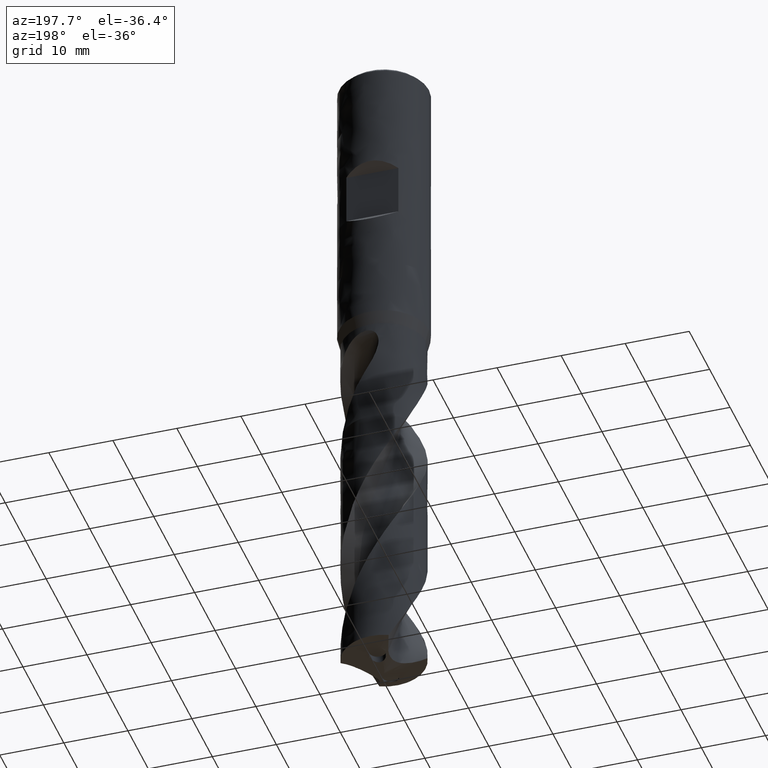
[diagram: clean part render]
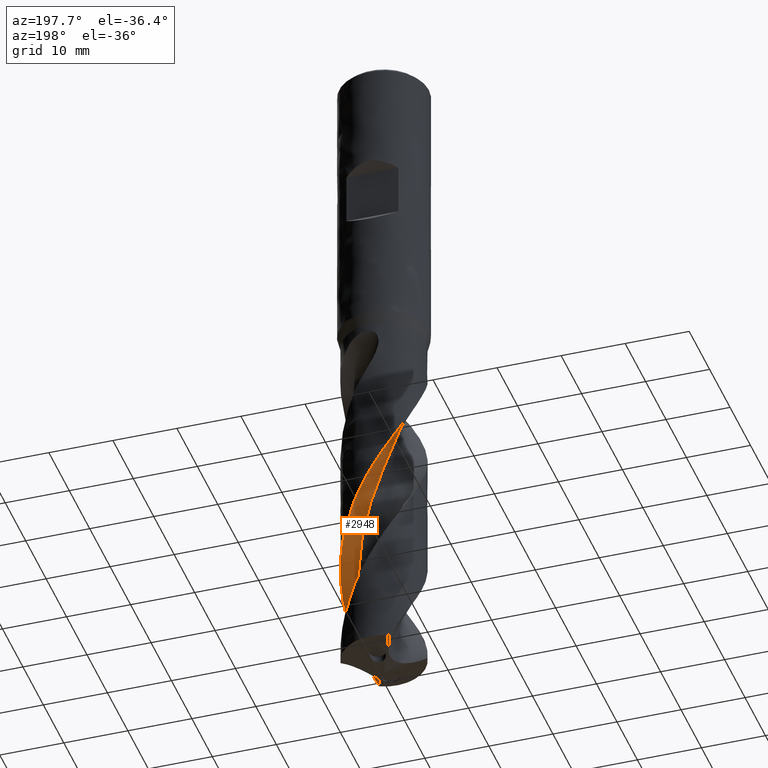
[diagram: same view with one face highlighted and labeled with its STEP entity id]
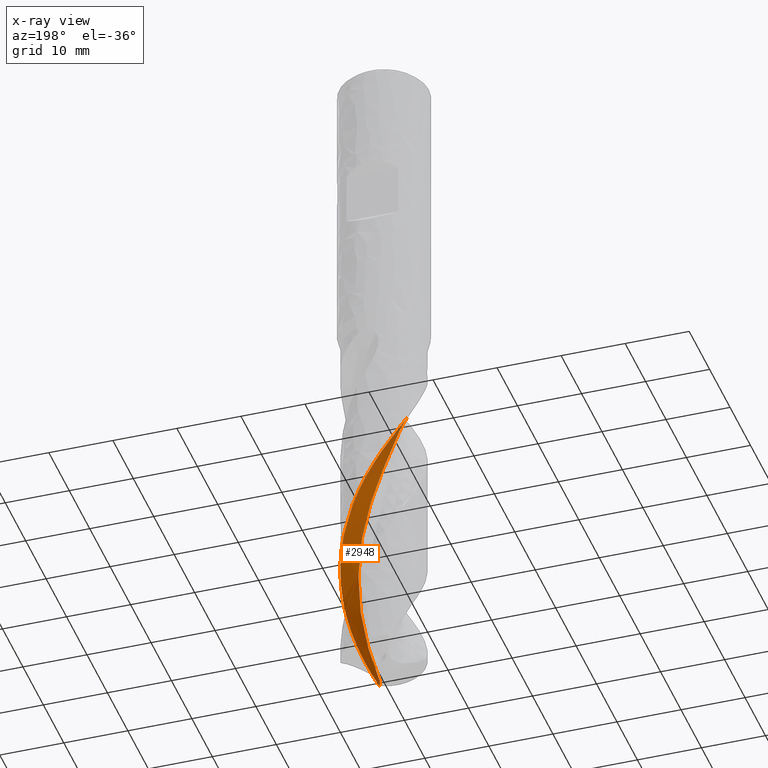
[diagram: x-ray of the same camera — body ghosted, the highlighted face saturated]
A machine part, auxiliary view. The second image highlights one B-rep face of the part: STEP entity #2948.
The next image is the same camera in x-ray: the body ghosted, the highlighted face saturated — about 0% of this face is hidden behind the body in this view.
In plain terms, the highlighted face is a freeform B-spline surface patch.
Its self-contained STEP definition (entity closure, byte-faithful):
#1653 = VERTEX_POINT('', #1654);
#1654 = CARTESIAN_POINT('', (-4.87816629638356, 4.29575297064759, -64.));
#1661 = EDGE_CURVE('', #1653, #1662, #1664, .T.);
#1662 = VERTEX_POINT('', #1663);
#1663 = CARTESIAN_POINT('', (-3.274731390133, 2.16180100099735, -64.));
#1664 = LINE('', #1665, #1666);
#1665 = CARTESIAN_POINT('', (-4.87816629638356, 4.29575297064758, -64.));
#1666 = VECTOR('', #1667, 2.66922357762644);
#1667 = DIRECTION('', (1.60343490625057, -2.13395196965023, 0.));
#2525 = EDGE_CURVE('', #2526, #1662, #2528, .T.);
#2526 = VERTEX_POINT('', #2527);
#2527 = CARTESIAN_POINT('', (1.76933288508049, -3.46675090777578, -105.583370022159));
#2528 = B_SPLINE_CURVE_WITH_KNOTS('', 3, (#2529, #2530, #2531, #2532, #2533, #2534, #2535, #2536, #2537, #2538, #2539, #2540, #2541, #2542, #2543, #2544, #2545, #2546, #2547, #2548, #2549, #2550, #2551, #2552, #2553, #2554, #2555, #2556, #2557, #2558, #2559, #2560, #2561, #2562, #2563, #2564, #2565, #2566), .UNSPECIFIED., .F., .U., (4, 1, 1, 1, 1, 1, 1, 1, 1, 1, 1, 1, 1, 1, 1, 1, 1, 1, 1, 1, 1, 1, 1, 1, 1, 1, 1, 1, 1, 1, 1, 1, 1, 1, 1, 4), (1.4666299778413, 2.41020408163265, 3.61530612244898, 4.82040816326531, 6.02551020408163, 7.23061224489796, 8.43571428571429, 9.64081632653061, 10.8459183673469, 12.0510204081633, 13.2561224489796, 14.4612244897959, 15.6663265306122, 16.8714285714286, 18.0765306122449, 19.2816326530612, 20.4867346938776, 21.6918367346939, 22.8969387755102, 24.1020408163265, 25.3071428571429, 26.5122448979592, 27.7173469387755, 28.9224489795918, 30.1275510204082, 31.3326530612245, 32.5377551020408, 33.7428571428571, 34.9479591836735, 36.1530612244898, 37.3581632653061, 38.5632653061224, 39.7683673469388, 40.9734693877551, 42.1785714285714, 43.05), .UNSPECIFIED.);
#2529 = CARTESIAN_POINT('', (1.76933288508049, -3.46675090777578, -105.583370022159));
#2530 = CARTESIAN_POINT('', (1.86403161741141, -3.41547287836796, -105.268845320895));
#2531 = CARTESIAN_POINT('', (2.07468531352025, -3.29001168240015, -104.552619939359));
#2532 = CARTESIAN_POINT('', (2.38330179197817, -3.06480483217446, -103.434693877551));
#2533 = CARTESIAN_POINT('', (2.68814217933525, -2.78931151072497, -102.229591836735));
#2534 = CARTESIAN_POINT('', (2.96199499352436, -2.48419282969365, -101.024489795918));
#2535 = CARTESIAN_POINT('', (3.20205648307337, -2.15284875457277, -99.819387755102));
#2536 = CARTESIAN_POINT('', (3.40588527757476, -1.79893476523791, -98.6142857142857));
#2537 = CARTESIAN_POINT('', (3.57142669086556, -1.42632644184809, -97.4091836734694));
#2538 = CARTESIAN_POINT('', (3.69703120537813, -1.03907896841299, -96.2040816326531));
#2539 = CARTESIAN_POINT('', (3.78146949403353, -0.641385956096459, -94.9989795918367));
#2540 = CARTESIAN_POINT('', (3.82394319587153, -0.23753689451328, -93.7938775510204));
#2541 = CARTESIAN_POINT('', (3.82409154838274, 0.168126086225984, -92.5887755102041));
#2542 = CARTESIAN_POINT('', (3.78199378763708, 0.571251822612428, -91.3836734693878));
#2543 = CARTESIAN_POINT('', (3.69816732451443, 0.967523674991317, -90.1785714285715));
#2544 = CARTESIAN_POINT('', (3.57356172485133, 1.35270264467177, -88.9734693877551));
#2545 = CARTESIAN_POINT('', (3.40954856110614, 1.72266965894616, -87.7683673469388));
#2546 = CARTESIAN_POINT('', (3.20790723667037, 2.07346664231647, -86.5632653061224));
#2547 = CARTESIAN_POINT('', (2.97080691804732, 2.40133600295455, -85.3581632653061));
#2548 = CARTESIAN_POINT('', (2.700784742685, 2.70275817758209, -84.1530612244898));
#2549 = CARTESIAN_POINT('', (2.40072050156955, 2.97448689464156, -82.9479591836735));
#2550 = CARTESIAN_POINT('', (2.07380802549667, 3.21358183490346, -81.7428571428572));
#2551 = CARTESIAN_POINT('', (1.72352353182169, 3.41743839049559, -80.5377551020408));
#2552 = CARTESIAN_POINT('', (1.35359121524303, 3.58381424703327, -79.3326530612245));
#2553 = CARTESIAN_POINT('', (0.967946387922444, 3.71085254113963, -78.1275510204082));
#2554 = CARTESIAN_POINT('', (0.570696504644847, 3.79710136875352, -76.9224489795918));
#2555 = CARTESIAN_POINT('', (0.166080396016395, 3.84152946889434, -75.7173469387755));
#2556 = CARTESIAN_POINT('', (-0.241573830700888, 3.84353786773258, -74.5122448979592));
#2557 = CARTESIAN_POINT('', (-0.647892196388959, 3.80296756817977, -73.3071428571429));
#2558 = CARTESIAN_POINT('', (-1.04849785427849, 3.72010240775062, -72.1020408163266));
#2559 = CARTESIAN_POINT('', (-1.4390582048143, 3.59566996371033, -70.8969387755102));
#2560 = CARTESIAN_POINT('', (-1.8153173920344, 3.43082953503109, -69.6918367346939));
#2561 = CARTESIAN_POINT('', (-2.17318216479515, 3.22718809041112, -68.4867346938776));
#2562 = CARTESIAN_POINT('', (-2.50860546387415, 2.98669170372674, -67.2816326530612));
#2563 = CARTESIAN_POINT('', (-2.81821987923533, 2.71196183364429, -66.0765306122449));
#2564 = CARTESIAN_POINT('', (-3.07142043178922, 2.43328741944995, -64.9826530612245));
#2565 = CARTESIAN_POINT('', (-3.21742118566723, 2.24403980479224, -64.2904761904762));
#2566 = CARTESIAN_POINT('', (-3.274731390133, 2.16180100099735, -64.));
#2948 = ADVANCED_FACE('', (#2949), #3152, .T.);
#2949 = FACE_OUTER_BOUND('', #2950, .T.);
#2950 = EDGE_LOOP('', (#2951, #2952, #3120, #3151));
#2951 = ORIENTED_EDGE('', *, *, #1661, .F.);
#2952 = ORIENTED_EDGE('', *, *, #2953, .F.);
#2953 = EDGE_CURVE('', #2954, #1653, #2956, .T.);
#2954 = VERTEX_POINT('', #2955);
#2955 = CARTESIAN_POINT('', (2.61940619360715, -5.94884116386481, -104.63419347727));
#2956 = B_SPLINE_CURVE_WITH_KNOTS('', 3, (#2957, #2958, #2959, #2960, #2961, #2962, #2963, #2964, #2965, #2966, #2967, #2968, #2969, #2970, #2971, #2972, #2973, #2974, #2975, #2976, #2977, #2978, #2979, #2980, #2981, #2982, #2983, #2984, #2985, #2986, #2987, #2988, #2989, #2990, #2991, #2992, #2993, #2994, #2995, #2996, #2997, #2998, #2999, #3000, #3001, #3002, #3003, #3004, #3005, #3006, #3007, #3008, #3009, #3010, #3011, #3012, #3013, #3014, #3015, #3016, #3017, #3018, #3019, #3020, #3021, #3022, #3023, #3024, #3025, #3026, #3027, #3028, #3029, #3030, #3031, #3032, #3033, #3034, #3035, #3036, #3037, #3038, #3039, #3040, #3041, #3042, #3043, #3044, #3045, #3046, #3047, #3048, #3049, #3050, #3051, #3052, #3053, #3054, #3055, #3056, #3057, #3058, #3059, #3060, #3061, #3062, #3063, #3064, #3065, #3066, #3067, #3068, #3069, #3070, #3071, #3072, #3073, #3074, #3075, #3076, #3077, #3078, #3079, #3080, #3081, #3082, #3083, #3084, #3085, #3086, #3087, #3088, #3089, #3090, #3091, #3092, #3093, #3094, #3095, #3096, #3097, #3098, #3099, #3100, #3101, #3102, #3103, #3104, #3105, #3106, #3107, #3108, #3109, #3110, #3111, #3112, #3113, #3114, #3115, #3116, #3117, #3118, #3119), .UNSPECIFIED., .F., .U., (4, 3, 3, 3, 3, 3, 3, 3, 3, 3, 3, 3, 3, 3, 3, 3, 3, 3, 3, 3, 3, 3, 3, 3, 3, 3, 3, 3, 3, 3, 3, 3, 3, 3, 3, 3, 3, 3, 3, 3, 3, 3, 3, 3, 3, 3, 3, 3, 3, 3, 3, 3, 3, 3, 4), (0., 0.998336370863944, 1.99649047412274, 2.99446505108534, 3.99226193379352, 4.9898817935871, 5.98732581131093, 6.98459455805101, 7.98168743480268, 8.97860342666089, 9.97534175727484, 10.9719006848027, 11.9682773599798, 12.9644690597732, 13.9604725858547, 14.9562835495989, 15.1532615507649, 15.2116460245776, 16.2110579170065, 17.2102600911362, 18.2092591755443, 19.2080605965188, 20.2066686766019, 21.20508757629, 22.2033208000953, 23.2013708329778, 24.1992395981786, 25.1969288894021, 26.1944397856855, 27.1917724837976, 28.1889269829923, 29.1859029339771, 30.1826991989231, 31.1793139316794, 32.1757451115352, 33.1719901355086, 34.1680454784339, 35.163907043328, 35.6069051423239, 35.694469019146, 35.7820428486242, 36.7814709676935, 37.7806867175351, 38.779696328427, 39.7785057029571, 40.7771202152903, 41.7755394793692, 42.7737762290059, 43.4390578971871, 44.4369638819278, 45.4347217356698, 45.878109440331, 46.3214662742558, 46.7647940182437, 46.8087609576268), .UNSPECIFIED.);
#2957 = CARTESIAN_POINT('', (2.61940619360715, -5.94884116386481, -104.63419347727));
#2958 = CARTESIAN_POINT('', (2.77000933407887, -5.88252727380424, -104.344948105084));
#2959 = CARTESIAN_POINT('', (2.9181311318725, -5.81047320705002, -104.055659297088));
#2960 = CARTESIAN_POINT('', (3.06329270126568, -5.7329083218182, -103.766430096253));
#2961 = CARTESIAN_POINT('', (3.20842776831718, -5.65535759771111, -103.477253700379));
#2962 = CARTESIAN_POINT('', (3.35065325148035, -5.57227156315183, -103.188033962482));
#2963 = CARTESIAN_POINT('', (3.48950857905087, -5.48391556068566, -102.898873617238));
#2964 = CARTESIAN_POINT('', (3.62833893233877, -5.39557544977953, -102.609765279881));
#2965 = CARTESIAN_POINT('', (3.7638492320856, -5.30193606612728, -102.320614386521));
#2966 = CARTESIAN_POINT('', (3.89559800422425, -5.20329858738512, -102.031522045313));
#2967 = CARTESIAN_POINT('', (4.02732331784964, -5.10467867152848, -101.742481178409));
#2968 = CARTESIAN_POINT('', (4.15533602928886, -5.00102684032901, -101.453397708881));
#2969 = CARTESIAN_POINT('', (4.27921950007723, -4.89267620736941, -101.164373324449));
#2970 = CARTESIAN_POINT('', (4.40308099223102, -4.78434479730495, -100.875400216925));
#2971 = CARTESIAN_POINT('', (4.52285763517651, -4.67127878809751, -100.586383622219));
#2972 = CARTESIAN_POINT('', (4.6381611428566, -4.5538402709027, -100.297426676787));
#2973 = CARTESIAN_POINT('', (4.75344432695627, -4.43642245360848, -100.008520663369));
#2974 = CARTESIAN_POINT('', (4.86429566266074, -4.31459315085371, -99.7195715668055));
#2975 = CARTESIAN_POINT('', (4.97035422752059, -4.18874430503559, -99.4306814669928));
#2976 = CARTESIAN_POINT('', (5.07639415575657, -4.06291757339192, -99.1418421309834));
#2977 = CARTESIAN_POINT('', (5.17768100738962, -3.93302753030298, -98.8529603533684));
#2978 = CARTESIAN_POINT('', (5.27388346603363, -3.79949380664018, -98.5641371784009));
#2979 = CARTESIAN_POINT('', (5.37006895921537, -3.6659836318698, -98.2753649378767));
#2980 = CARTESIAN_POINT('', (5.46120624816701, -3.52878341700517, -97.9865496802998));
#2981 = CARTESIAN_POINT('', (5.54699811081937, -3.38833468809772, -97.6977938429317));
#2982 = CARTESIAN_POINT('', (5.6327747539422, -3.24791087488171, -97.4090892310279));
#2983 = CARTESIAN_POINT('', (5.71323737564219, -3.10419142447573, -97.1203411544657));
#2984 = CARTESIAN_POINT('', (5.78812358453371, -2.95763847861172, -96.831652528894));
#2985 = CARTESIAN_POINT('', (5.86299644789044, -2.81111165007246, -96.543015350767));
#2986 = CARTESIAN_POINT('', (5.93232112351955, -2.66170083634851, -96.2543354120806));
#2987 = CARTESIAN_POINT('', (5.99586996543631, -2.50988911260612, -95.9657141672431));
#2988 = CARTESIAN_POINT('', (6.05940736918721, -2.35810471347933, -95.6771448713881));
#2989 = CARTESIAN_POINT('', (6.11719395059291, -2.20386549327893, -95.3885329406229));
#2990 = CARTESIAN_POINT('', (6.16903939367948, -2.04767012949616, -95.0999799951036));
#2991 = CARTESIAN_POINT('', (6.22087535518535, -1.89150333098077, -94.8114798206259));
#2992 = CARTESIAN_POINT('', (6.26679052297084, -1.73332654250227, -94.522936215087));
#2993 = CARTESIAN_POINT('', (6.3066336893928, -1.5736491056827, -94.234452203749));
#2994 = CARTESIAN_POINT('', (6.34646945900873, -1.41400131266742, -93.9460217489043));
#2995 = CARTESIAN_POINT('', (6.38024920832287, -1.25279827353652, -93.6575480709661));
#2996 = CARTESIAN_POINT('', (6.40786061987277, -1.09056053306734, -93.3691335096882));
#2997 = CARTESIAN_POINT('', (6.43546681581829, -0.928353438183567, -93.0807734279231));
#2998 = CARTESIAN_POINT('', (6.45691682009467, -0.765054035860772, -92.7923707610906));
#2999 = CARTESIAN_POINT('', (6.472137851813, -0.601191838875201, -92.5040267286689));
#3000 = CARTESIAN_POINT('', (6.48735594077324, -0.437361322186757, -92.2157384432393));
#3001 = CARTESIAN_POINT('', (6.49635296757946, -0.272909456583064, -91.9274071935528));
#3002 = CARTESIAN_POINT('', (6.49909658321736, -0.108367901215504, -91.6391352506302));
#3003 = CARTESIAN_POINT('', (6.49963928855401, -0.0758204922542955, -91.5821131518821));
#3004 = CARTESIAN_POINT('', (6.49993750415248, -0.0432682353896615, -91.5250909689645));
#3005 = CARTESIAN_POINT('', (6.49999116790726, -0.0107152754332977, -91.4680694815839));
#3006 = CARTESIAN_POINT('', (6.5000070738971, -0.00106654599727479, -91.4511682564876));
#3007 = CARTESIAN_POINT('', (6.50000149574059, 0.00858227089324768, -91.4342670474435));
#3008 = CARTESIAN_POINT('', (6.49997443288717, 0.0182310672510026, -91.4173658747346));
#3009 = CARTESIAN_POINT('', (6.49951117723406, 0.183396927244832, -91.1280555170623));
#3010 = CARTESIAN_POINT('', (6.4927479255379, 0.348588302338374, -90.8387013405134));
#3011 = CARTESIAN_POINT('', (6.47970341716715, 0.513267596437446, -90.5494073207581));
#3012 = CARTESIAN_POINT('', (6.46666164607832, 0.677912333952055, -90.2601740069541));
#3013 = CARTESIAN_POINT('', (6.44733670028649, 0.842102561039139, -89.9708967983417));
#3014 = CARTESIAN_POINT('', (6.42178830060736, 1.00530344781195, -89.6816795149217));
#3015 = CARTESIAN_POINT('', (6.39624509368853, 1.16847116369752, -89.3925210154588));
#3016 = CARTESIAN_POINT('', (6.36447176872771, 1.33070829145385, -89.1033192562155));
#3017 = CARTESIAN_POINT('', (6.32656900996835, 1.49148401335992, -88.8141768261525));
#3018 = CARTESIAN_POINT('', (6.28867375070478, 1.65222792394432, -88.5250916062376));
#3019 = CARTESIAN_POINT('', (6.2446377486918, 1.81156935704386, -88.2359630185309));
#3020 = CARTESIAN_POINT('', (6.19460148955301, 1.96898765502167, -87.9468942169092));
#3021 = CARTESIAN_POINT('', (6.14457491607819, 2.12637548108242, -87.6578813711748));
#3022 = CARTESIAN_POINT('', (6.08853286038537, 2.2818962578385, -87.3688245225019));
#3023 = CARTESIAN_POINT('', (6.02665450384704, 2.4350432216411, -87.0798278316637));
#3024 = CARTESIAN_POINT('', (5.9647878697974, 2.58816117265711, -86.7908858895395));
#3025 = CARTESIAN_POINT('', (5.89706535868237, 2.73896001802069, -86.5019002976867));
#3026 = CARTESIAN_POINT('', (5.82370488587445, 2.88694672660272, -86.2129743411461));
#3027 = CARTESIAN_POINT('', (5.75035805590777, 3.0349059141084, -85.9241021161424));
#3028 = CARTESIAN_POINT('', (5.67134879494947, 3.18010752740574, -85.6351866718054));
#3029 = CARTESIAN_POINT('', (5.58693243766289, 3.32207554655072, -85.3463306502746));
#3030 = CARTESIAN_POINT('', (5.50253157205703, 3.46401751241294, -85.0575276382008));
#3031 = CARTESIAN_POINT('', (5.41269531581825, 3.60277807757452, -84.7686809300458));
#3032 = CARTESIAN_POINT('', (5.31771347756209, 3.73790360637545, -84.4798942450368));
#3033 = CARTESIAN_POINT('', (5.222748890082, 3.87300459342944, -84.1911600099964));
#3034 = CARTESIAN_POINT('', (5.12260732402302, 4.00451919877215, -83.9023818241729));
#3035 = CARTESIAN_POINT('', (5.01761211999317, 4.13201749915192, -83.6136636248962));
#3036 = CARTESIAN_POINT('', (4.91263580011674, 4.25949286803222, -83.3249973536939));
#3037 = CARTESIAN_POINT('', (4.80277012408834, 4.3829987881217, -83.0362876568676));
#3038 = CARTESIAN_POINT('', (4.68837150028583, 4.50212979325426, -82.747637397862));
#3039 = CARTESIAN_POINT('', (4.57399333188545, 4.62123949679651, -82.4590387518647));
#3040 = CARTESIAN_POINT('', (4.45504232267967, 4.73601908896275, -82.1703967244078));
#3041 = CARTESIAN_POINT('', (4.33190441932027, 4.84609163160103, -81.8818144008511));
#3042 = CARTESIAN_POINT('', (4.20878851366463, 4.9561445105686, -81.5932836304578));
#3043 = CARTESIAN_POINT('', (4.08144361705921, 5.06153104192899, -81.3047089027246));
#3044 = CARTESIAN_POINT('', (3.95028196754582, 5.16190588609308, -81.0161942926714));
#3045 = CARTESIAN_POINT('', (3.8191437534056, 5.26226279573181, -80.7277312331101));
#3046 = CARTESIAN_POINT('', (3.68414395862088, 5.35764512178563, -80.4392244023504));
#3047 = CARTESIAN_POINT('', (3.54572075352086, 5.44773937868283, -80.1507773215617));
#3048 = CARTESIAN_POINT('', (3.40732233416415, 5.53781750350792, -79.8623818894492));
#3049 = CARTESIAN_POINT('', (3.26545177078078, 5.62264192495851, -79.5739431240169));
#3050 = CARTESIAN_POINT('', (3.12057095432738, 5.70193273539844, -79.2855638031227));
#3051 = CARTESIAN_POINT('', (2.97571624989804, 5.78120925517105, -78.9972364571411));
#3052 = CARTESIAN_POINT('', (2.82780009556202, 5.85498280670084, -78.7088654706217));
#3053 = CARTESIAN_POINT('', (2.67730311365852, 5.92301004875008, -78.4205544177631));
#3054 = CARTESIAN_POINT('', (2.5268335396092, 5.99102490197461, -78.1322958708563));
#3055 = CARTESIAN_POINT('', (2.37373103905718, 6.05331952877378, -77.8439933493554));
#3056 = CARTESIAN_POINT('', (2.2184927227513, 6.10968821128375, -77.5557508479418));
#3057 = CARTESIAN_POINT('', (2.06328299767762, 6.16604651201344, -77.2675614339907));
#3058 = CARTESIAN_POINT('', (1.90588295726295, 6.21650108041619, -76.9793284519001));
#3059 = CARTESIAN_POINT('', (1.74680540123255, 6.26088419396374, -76.6911550222934));
#3060 = CARTESIAN_POINT('', (1.58775756448774, 6.3052590157418, -76.4030354300014));
#3061 = CARTESIAN_POINT('', (1.42697515149097, 6.34358074048795, -76.1148724075164));
#3062 = CARTESIAN_POINT('', (1.26498228149907, 6.37572112215503, -75.8267690500532));
#3063 = CARTESIAN_POINT('', (1.10302025429848, 6.40785538442263, -75.5387205463111));
#3064 = CARTESIAN_POINT('', (0.939790480465068, 6.4338221509855, -75.2506281327775));
#3065 = CARTESIAN_POINT('', (0.775823801317023, 6.45353371644642, -74.9625957875614));
#3066 = CARTESIAN_POINT('', (0.611889021139742, 6.47324144711203, -74.6746194777265));
#3067 = CARTESIAN_POINT('', (0.447159706077222, 6.48670335474183, -74.3865993306259));
#3068 = CARTESIAN_POINT('', (0.282172373405174, 6.49387240032387, -74.0986390092808));
#3069 = CARTESIAN_POINT('', (0.208779567307789, 6.49706147165308, -73.970543017389));
#3070 = CARTESIAN_POINT('', (0.135327233918123, 6.49900638889156, -73.8424441026508));
#3071 = CARTESIAN_POINT('', (0.0618628603330334, 6.49970560768036, -73.7143513463826));
#3072 = CARTESIAN_POINT('', (0.0473417475472231, 6.49984381664341, -73.689032279874));
#3073 = CARTESIAN_POINT('', (0.0328200426431391, 6.49993336372865, -73.6637132405581));
#3074 = CARTESIAN_POINT('', (0.0182981129976577, 6.49997424449211, -73.6383942983358));
#3075 = CARTESIAN_POINT('', (0.00377453276546388, 6.50001512990215, -73.6130724783203));
#3076 = CARTESIAN_POINT('', (-0.0107493126386055, 6.50000733804025, -73.5877506850104));
#3077 = CARTESIAN_POINT('', (-0.0252730556240204, 6.49995086694196, -73.5624289883061));
#3078 = CARTESIAN_POINT('', (-0.191023910876642, 6.49930639582667, -73.2734474985208));
#3079 = CARTESIAN_POINT('', (-0.356793645448201, 6.49231710630601, -72.9844214601502));
#3080 = CARTESIAN_POINT('', (-0.522038435425149, 6.47900269115079, -72.6954561533519));
#3081 = CARTESIAN_POINT('', (-0.687248112413217, 6.46569110518561, -72.4065522490075));
#3082 = CARTESIAN_POINT('', (-0.851992352956143, 6.44605226698588, -72.1176041864579));
#3083 = CARTESIAN_POINT('', (-1.01572916207107, 6.4201475270681, -71.8287164860837));
#3084 = CARTESIAN_POINT('', (-1.17943219216092, 6.39424813131736, -71.5398883834562));
#3085 = CARTESIAN_POINT('', (-1.34218783682991, 6.36207595845641, -71.2510162606302));
#3086 = CARTESIAN_POINT('', (-1.50345956520613, 6.32373381285062, -70.9622041363605));
#3087 = CARTESIAN_POINT('', (-1.66469896910439, 6.28539935234782, -70.6734499001115));
#3088 = CARTESIAN_POINT('', (-1.82451327310336, 6.24088363712679, -70.3846509521952));
#3089 = CARTESIAN_POINT('', (-1.98237871233969, 6.19032912217618, -70.0959133043277));
#3090 = CARTESIAN_POINT('', (-2.14021335290004, 6.13978447013244, -69.8072319875818));
#3091 = CARTESIAN_POINT('', (-2.29615713846374, 6.08318491262441, -69.5185074350588));
#3092 = CARTESIAN_POINT('', (-2.4496943524106, 6.02071404235143, -69.2298430060934));
#3093 = CARTESIAN_POINT('', (-2.60320154689286, 5.95825538632951, -68.9412350165499));
#3094 = CARTESIAN_POINT('', (-2.75435730435058, 5.88990562122435, -68.6525816782872));
#3095 = CARTESIAN_POINT('', (-2.90266064245122, 5.81588868486706, -68.3639855467492));
#3096 = CARTESIAN_POINT('', (-3.05093687019653, 5.74188527905785, -68.075442171567));
#3097 = CARTESIAN_POINT('', (-3.19641932841066, 5.6621885942667, -67.7868537083057));
#3098 = CARTESIAN_POINT('', (-3.33864218215815, 5.5770483572867, -67.4983343448893));
#3099 = CARTESIAN_POINT('', (-3.43342756992218, 5.52030606753629, -67.3060486536783));
#3100 = CARTESIAN_POINT('', (-3.52678700364809, 5.46113373420576, -67.1137565131183));
#3101 = CARTESIAN_POINT('', (-3.61857301015891, 5.39962307667392, -66.9214819379842));
#3102 = CARTESIAN_POINT('', (-3.75624974107352, 5.30735861755516, -66.6330748490524));
#3103 = CARTESIAN_POINT('', (-3.89042042743402, 5.20980649893446, -66.3446161352594));
#3104 = CARTESIAN_POINT('', (-4.02061380008967, 5.10731481999383, -66.0561869358665));
#3105 = CARTESIAN_POINT('', (-4.15078784660176, 5.00483835510642, -65.7678005514342));
#3106 = CARTESIAN_POINT('', (-4.27705199469623, 4.89737806601406, -65.4793505532735));
#3107 = CARTESIAN_POINT('', (-4.39910199445739, 4.78517519453165, -65.1910317572222));
#3108 = CARTESIAN_POINT('', (-4.45333907116399, 4.73531402485365, -65.0629074746496));
#3109 = CARTESIAN_POINT('', (-4.50674996128084, 4.68451070013988, -64.9347939622938));
#3110 = CARTESIAN_POINT('', (-4.559298192352, 4.63279613119505, -64.8067005772725));
#3111 = CARTESIAN_POINT('', (-4.61184276476828, 4.58108516286162, -64.6786161107148));
#3112 = CARTESIAN_POINT('', (-4.66352146971042, 4.52846559130848, -64.5505371262696));
#3113 = CARTESIAN_POINT('', (-4.71426778631788, 4.47500606020658, -64.4224454528677));
#3114 = CARTESIAN_POINT('', (-4.76501077331128, 4.42155003674066, -64.2943621839347));
#3115 = CARTESIAN_POINT('', (-4.81482527799334, 4.3672505254815, -64.1662569887568));
#3116 = CARTESIAN_POINT('', (-4.86366420004223, 4.31216541301788, -64.0381238118183));
#3117 = CARTESIAN_POINT('', (-4.86850779026274, 4.30670235812577, -64.0254162298999));
#3118 = CARTESIAN_POINT('', (-4.87334186532457, 4.30123149260916, -64.0127082113322));
#3119 = CARTESIAN_POINT('', (-4.87816629638356, 4.29575297064759, -64.));
#3120 = ORIENTED_EDGE('', *, *, #3121, .F.);
#3121 = EDGE_CURVE('', #2526, #2954, #3122, .T.);
#3122 = B_SPLINE_CURVE_WITH_KNOTS('', 3, (#3123, #3124, #3125, #3126, #3127, #3128, #3129, #3130, #3131, #3132, #3133, #3134, #3135, #3136, #3137, #3138, #3139, #3140, #3141, #3142, #3143, #3144, #3145, #3146, #3147, #3148, #3149, #3150), .UNSPECIFIED., .F., .U., (4, 3, 3, 3, 3, 3, 3, 3, 3, 4), (0., 0.295835820570889, 0.591613658449946, 0.887350826105139, 1.18306008718288, 1.47875094231403, 1.7744305228344, 2.07010421923986, 2.36577612838017, 2.79313511845757), .UNSPECIFIED.);
#3123 = CARTESIAN_POINT('', (1.76933288508049, -3.46675090777578, -105.583370022159));
#3124 = CARTESIAN_POINT('', (1.79165078681512, -3.55697819574864, -105.550426699386));
#3125 = CARTESIAN_POINT('', (1.81480206309329, -3.64695966107025, -105.517363166403));
#3126 = CARTESIAN_POINT('', (1.83878032970212, -3.73668230953287, -105.484208923366));
#3127 = CARTESIAN_POINT('', (1.8627538966622, -3.82638737269881, -105.451061178433));
#3128 = CARTESIAN_POINT('', (1.88755599331301, -3.91584068567242, -105.417820046364));
#3129 = CARTESIAN_POINT('', (1.9131794945807, -4.00502767665922, -105.384509085915));
#3130 = CARTESIAN_POINT('', (1.93879947255017, -4.09420240420222, -105.351202705811));
#3131 = CARTESIAN_POINT('', (1.96524260160809, -4.18311774017254, -105.317823858599));
#3132 = CARTESIAN_POINT('', (1.99250110922501, -4.27175801318538, -105.284391747959));
#3133 = CARTESIAN_POINT('', (2.01975704465372, -4.36038992185679, -105.250962792064));
#3134 = CARTESIAN_POINT('', (2.04783028527898, -4.44875357820556, -105.21747796497));
#3135 = CARTESIAN_POINT('', (2.07671247678043, -4.53683255987929, -105.183953222698));
#3136 = CARTESIAN_POINT('', (2.1055928705564, -4.62490605921869, -105.150430567119));
#3137 = CARTESIAN_POINT('', (2.13528430183209, -4.71270158447889, -105.116865414932));
#3138 = CARTESIAN_POINT('', (2.16577788309035, -4.80020221991293, -105.083271261151));
#3139 = CARTESIAN_POINT('', (2.19627030163678, -4.88769951897186, -105.049678388306));
#3140 = CARTESIAN_POINT('', (2.22756710128483, -4.97490852447721, -105.016053955971));
#3141 = CARTESIAN_POINT('', (2.2596588991916, -5.06181202019843, -104.982409566009));
#3142 = CARTESIAN_POINT('', (2.2917500584617, -5.14871378651326, -104.94876584558));
#3143 = CARTESIAN_POINT('', (2.32463857939626, -5.23531653822853, -104.915099631536));
#3144 = CARTESIAN_POINT('', (2.35831461484529, -5.32160290510018, -104.881421048657));
#3145 = CARTESIAN_POINT('', (2.39199044673206, -5.40788875039478, -104.847742669355));
#3146 = CARTESIAN_POINT('', (2.42645627893467, -5.49386460661232, -104.814049406279));
#3147 = CARTESIAN_POINT('', (2.46170182656846, -5.5795130621944, -104.780350216196));
#3148 = CARTESIAN_POINT('', (2.51264512275543, -5.70330783723971, -104.731641998082));
#3149 = CARTESIAN_POINT('', (2.56522410315672, -5.82643466081626, -104.682915190627));
#3150 = CARTESIAN_POINT('', (2.61940619360715, -5.94884116386481, -104.63419347727));
#3151 = ORIENTED_EDGE('', *, *, #2525, .T.);
#3152 = B_SPLINE_SURFACE_WITH_KNOTS('', 3, 1, ((#3153, #3154), (#3155, #3156), (#3157, #3158), (#3159, #3160), (#3161, #3162), (#3163, #3164), (#3165, #3166), (#3167, #3168), (#3169, #3170), (#3171, #3172), (#3173, #3174), (#3175, #3176), (#3177, #3178), (#3179, #3180), (#3181, #3182), (#3183, #3184), (#3185, #3186), (#3187, #3188), (#3189, #3190), (#3191, #3192), (#3193, #3194), (#3195, #3196), (#3197, #3198), (#3199, #3200), (#3201, #3202), (#3203, #3204), (#3205, #3206), (#3207, #3208), (#3209, #3210), (#3211, #3212), (#3213, #3214), (#3215, #3216), (#3217, #3218), (#3219, #3220), (#3221, #3222), (#3223, #3224), (#3225, #3226), (#3227, #3228)), .UNSPECIFIED., .F., .F., .U., (4, 1, 1, 1, 1, 1, 1, 1, 1, 1, 1, 1, 1, 1, 1, 1, 1, 1, 1, 1, 1, 1, 1, 1, 1, 1, 1, 1, 1, 1, 1, 1, 1, 1, 1, 4), (2, 2), (1.4666299778413, 2.41020408163265, 3.61530612244898, 4.82040816326531, 6.02551020408163, 7.23061224489796, 8.43571428571429, 9.64081632653061, 10.8459183673469, 12.0510204081633, 13.2561224489796, 14.4612244897959, 15.6663265306122, 16.8714285714286, 18.0765306122449, 19.2816326530612, 20.4867346938776, 21.6918367346939, 22.8969387755102, 24.1020408163265, 25.3071428571429, 26.5122448979592, 27.7173469387755, 28.9224489795918, 30.1275510204082, 31.3326530612245, 32.5377551020408, 33.7428571428571, 34.9479591836735, 36.1530612244898, 37.3581632653061, 38.5632653061224, 39.7683673469388, 40.9734693877551, 42.1785714285714, 43.05), (0., 0.188513869291547), .UNSPECIFIED.);
#3153 = CARTESIAN_POINT('', (1.7693328850805, -3.46675090777578, -105.583370022159));
#3154 = CARTESIAN_POINT('', (2.14179145922626, -6.33842651738091, -105.583370022159));
#3155 = CARTESIAN_POINT('', (1.86403161741141, -3.41547287836796, -105.268845320895));
#3156 = CARTESIAN_POINT('', (2.31567077847887, -6.2749098224316, -105.268845320895));
#3157 = CARTESIAN_POINT('', (2.07468531352025, -3.29001168240014, -104.552619939359));
#3158 = CARTESIAN_POINT('', (2.70530933194631, -6.1142399134945, -104.552619939359));
#3159 = CARTESIAN_POINT('', (2.38330179197817, -3.06480483217446, -103.434693877551));
#3160 = CARTESIAN_POINT('', (3.28650319506069, -5.80844240375392, -103.434693877551));
#3161 = CARTESIAN_POINT('', (2.68814217933525, -2.78931151072497, -102.229591836735));
#3162 = CARTESIAN_POINT('', (3.87385510074781, -5.41617953098498, -102.229591836735));
#3163 = CARTESIAN_POINT('', (2.96199499352436, -2.48419282969365, -101.024489795918));
#3164 = CARTESIAN_POINT('', (4.41591859250524, -4.96578166939005, -101.024489795918));
#3165 = CARTESIAN_POINT('', (3.20205648307337, -2.15284875457277, -99.819387755102));
#3166 = CARTESIAN_POINT('', (4.90707485970774, -4.46232963857382, -99.819387755102));
#3167 = CARTESIAN_POINT('', (3.40588527757476, -1.79893476523791, -98.6142857142857));
#3168 = CARTESIAN_POINT('', (5.34225746167448, -3.91142945906532, -98.6142857142857));
#3169 = CARTESIAN_POINT('', (3.57142669086556, -1.42632644184809, -97.4091836734694));
#3170 = CARTESIAN_POINT('', (5.71700251874764, -3.31915820441616, -97.4091836734694));
#3171 = CARTESIAN_POINT('', (3.69703120537813, -1.03907896841299, -96.2040816326531));
#3172 = CARTESIAN_POINT('', (6.02749027888304, -2.69199975425643, -96.2040816326531));
#3173 = CARTESIAN_POINT('', (3.78146949403353, -0.641385956096459, -94.9989795918367));
#3174 = CARTESIAN_POINT('', (6.27058096592042, -2.03677852425946, -94.9989795918367));
#3175 = CARTESIAN_POINT('', (3.82394319587153, -0.23753689451328, -93.7938775510204));
#3176 = CARTESIAN_POINT('', (6.44384374958722, -1.36058980050765, -93.7938775510204));
#3177 = CARTESIAN_POINT('', (3.82409154838274, 0.168126086225984, -92.5887755102041));
#3178 = CARTESIAN_POINT('', (6.5455788415451, -0.670727865158617, -92.5887755102041));
#3179 = CARTESIAN_POINT('', (3.78199378763708, 0.571251822612428, -91.3836734693878));
#3180 = CARTESIAN_POINT('', (6.57483248619937, 0.0253875644284489, -91.3836734693878));
#3181 = CARTESIAN_POINT('', (3.69816732451443, 0.967523674991317, -90.1785714285715));
#3182 = CARTESIAN_POINT('', (6.53140475558047, 0.720285868469225, -90.1785714285715));
#3183 = CARTESIAN_POINT('', (3.57356172485133, 1.35270264467177, -88.9734693877551));
#3184 = CARTESIAN_POINT('', (6.4158500979612, 1.40652035870728, -88.9734693877551));
#3185 = CARTESIAN_POINT('', (3.40954856110614, 1.72266965894616, -87.7683673469388));
#3186 = CARTESIAN_POINT('', (6.22947065712719, 2.07674273005848, -87.7683673469388));
#3187 = CARTESIAN_POINT('', (3.20790723667037, 2.07346664231647, -86.5632653061224));
#3188 = CARTESIAN_POINT('', (5.97430243879669, 2.72377645549759, -86.5632653061224));
#3189 = CARTESIAN_POINT('', (2.97080691804732, 2.40133600295455, -85.3581632653061));
#3190 = CARTESIAN_POINT('', (5.65309446135195, 3.34068845945629, -85.3581632653061));
#3191 = CARTESIAN_POINT('', (2.700784742685, 2.70275817758209, -84.1530612244898));
#3192 = CARTESIAN_POINT('', (5.26928108696984, 3.92085842093515, -84.1530612244898));
#3193 = CARTESIAN_POINT('', (2.40072050156955, 2.97448689464156, -82.9479591836735));
#3194 = CARTESIAN_POINT('', (4.8269477866774, 4.4580450780728, -82.9479591836735));
#3195 = CARTESIAN_POINT('', (2.07380802549667, 3.21358183490346, -81.7428571428572));
#3196 = CARTESIAN_POINT('', (4.3307906483788, 4.94644893123734, -81.7428571428572));
#3197 = CARTESIAN_POINT('', (1.72352353182169, 3.41743839049559, -80.5377551020408));
#3198 = CARTESIAN_POINT('', (3.78606998978423, 5.38077077187248, -80.5377551020408));
#3199 = CARTESIAN_POINT('', (1.35359121524303, 3.58381424703327, -79.3326530612245));
#3200 = CARTESIAN_POINT('', (3.19855848959779, 5.7562654979324, -79.3326530612245));
#3201 = CARTESIAN_POINT('', (0.967946387922444, 3.71085254113963, -78.1275510204082));
#3202 = CARTESIAN_POINT('', (2.57448429421636, 6.06879071825469, -78.1275510204082));
#3203 = CARTESIAN_POINT('', (0.570696504644847, 3.79710136875352, -76.9224489795918));
#3204 = CARTESIAN_POINT('', (1.92046961467159, 6.314849679915, -76.9224489795918));
#3205 = CARTESIAN_POINT('', (0.166080396016395, 3.84152946889434, -75.7173469387755));
#3206 = CARTESIAN_POINT('', (1.24346531926752, 6.49162813958114, -75.7173469387755));
#3207 = CARTESIAN_POINT('', (-0.241573830700888, 3.84353786773258, -74.5122448979592));
#3208 = CARTESIAN_POINT('', (0.550682249715888, 6.5970246979893, -74.5122448979592));
#3209 = CARTESIAN_POINT('', (-0.647892196388959, 3.80296756817977, -73.3071428571429));
#3210 = CARTESIAN_POINT('', (-0.150480672456465, 6.62967473577647, -73.3071428571429));
#3211 = CARTESIAN_POINT('', (-1.04849785427849, 3.72010240775062, -72.1020408163266));
#3212 = CARTESIAN_POINT('', (-0.852508866950277, 6.58896603192107, -72.1020408163266));
#3213 = CARTESIAN_POINT('', (-1.4390582048143, 3.59566996371033, -70.8969387755102));
#3214 = CARTESIAN_POINT('', (-1.54785199511732, 6.47505208960378, -70.8969387755102));
#3215 = CARTESIAN_POINT('', (-1.8153173920344, 3.43082953503109, -69.6918367346939));
#3216 = CARTESIAN_POINT('', (-2.22898223208954, 6.2888398269417, -69.6918367346939));
#3217 = CARTESIAN_POINT('', (-2.17318216479515, 3.22718809041112, -68.4867346938776));
#3218 = CARTESIAN_POINT('', (-2.8885362987876, 6.03203817881071, -68.4867346938776));
#3219 = CARTESIAN_POINT('', (-2.50860546387415, 2.98669170372674, -67.2816326530612));
#3220 = CARTESIAN_POINT('', (-3.51914464102626, 5.70694434186078, -67.2816326530612));
#3221 = CARTESIAN_POINT('', (-2.81821987923533, 2.71196183364429, -66.0765306122449));
#3222 = CARTESIAN_POINT('', (-4.11442460608931, 5.31717414433238, -66.0765306122449));
#3223 = CARTESIAN_POINT('', (-3.07142043178922, 2.43328741944995, -64.9826530612245));
#3224 = CARTESIAN_POINT('', (-4.61474996913299, 4.90658278736161, -64.9826530612245));
#3225 = CARTESIAN_POINT('', (-3.21742118566723, 2.24403980479224, -64.2904761904762));
#3226 = CARTESIAN_POINT('', (-4.91039232090783, 4.62125927901331, -64.2904761904762));
#3227 = CARTESIAN_POINT('', (-3.274731390133, 2.16180100099735, -64.));
#3228 = CARTESIAN_POINT('', (-5.02843138608133, 4.49573519810205, -64.));